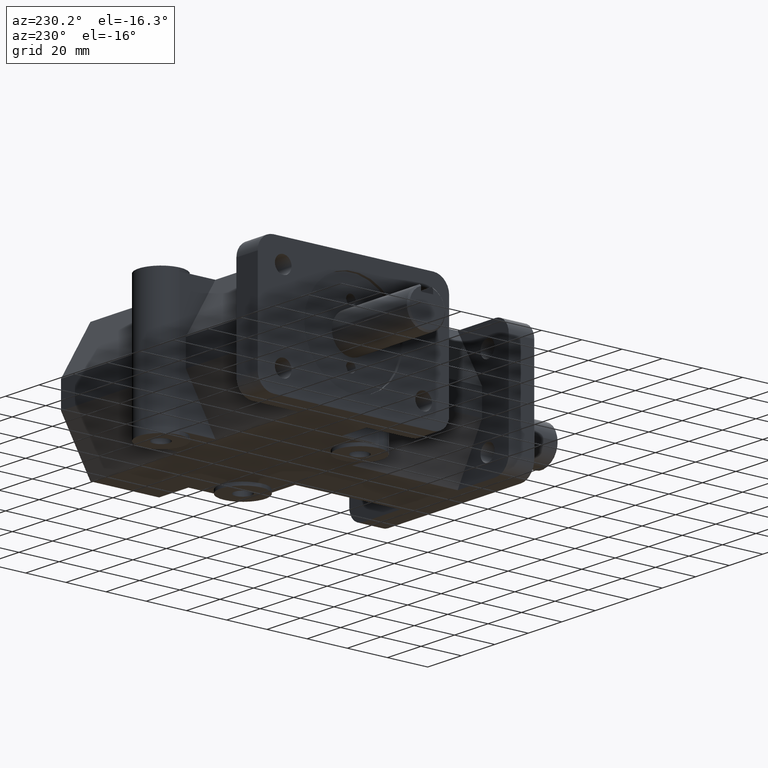
[diagram: clean part render]
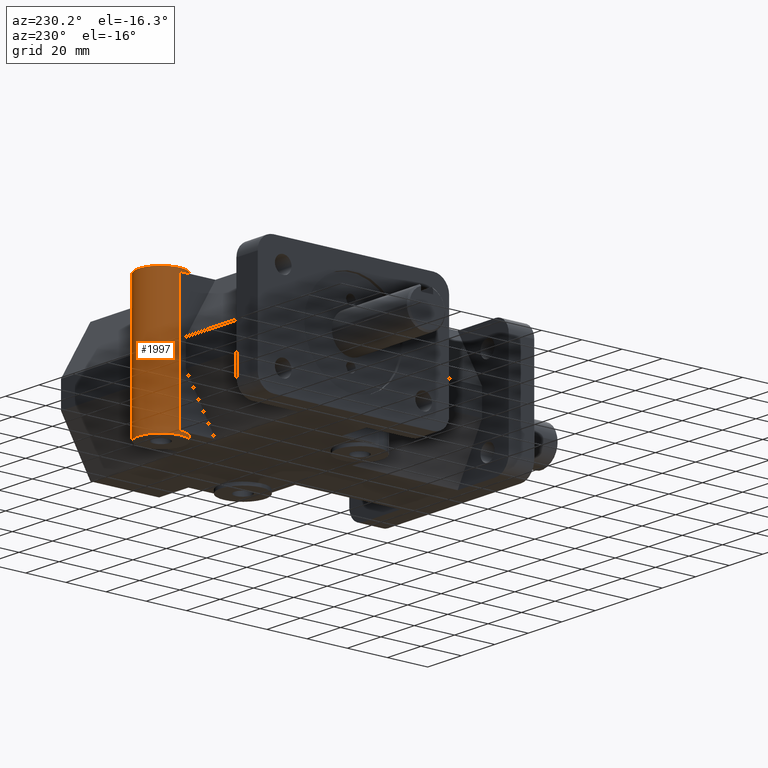
[diagram: same view with one face highlighted and labeled with its STEP entity id]
A machine part, auxiliary view. The second image highlights one B-rep face of the part: STEP entity #1997.
In plain terms, the highlighted cylindrical surface (bore or boss wall) has radius 11.1125 mm, axis along (0, 0, -1).
Its self-contained STEP definition (entity closure, byte-faithful):
#215=FACE_OUTER_BOUND('',#351,.T.);
#351=EDGE_LOOP('',(#1755,#1756,#1757,#1758,#1759,#1760,#1761,#1762,#1763,
#1764));
#557=LINE('',#3355,#748);
#558=LINE('',#3357,#749);
#559=LINE('',#3358,#750);
#560=LINE('',#3359,#751);
#748=VECTOR('',#2747,1.);
#749=VECTOR('',#2750,11.1125);
#750=VECTOR('',#2751,1.);
#751=VECTOR('',#2752,11.1125);
#819=CIRCLE('',#2125,11.1125);
#824=CIRCLE('',#2132,11.1125);
#849=CIRCLE('',#2194,11.1125);
#850=CIRCLE('',#2196,11.1125);
#947=VERTEX_POINT('',#3078);
#948=VERTEX_POINT('',#3080);
#967=VERTEX_POINT('',#3127);
#968=VERTEX_POINT('',#3129);
#1022=VERTEX_POINT('',#3309);
#1023=VERTEX_POINT('',#3312);
#1160=EDGE_CURVE('',#947,#948,#819,.T.);
#1187=EDGE_CURVE('',#967,#968,#824,.T.);
#1276=EDGE_CURVE('',#1022,#1022,#849,.T.);
#1277=EDGE_CURVE('',#1023,#1023,#850,.T.);
#1298=EDGE_CURVE('',#947,#968,#557,.T.);
#1299=EDGE_CURVE('',#1023,#967,#558,.T.);
#1300=EDGE_CURVE('',#948,#967,#559,.T.);
#1301=EDGE_CURVE('',#948,#1022,#560,.T.);
#1755=ORIENTED_EDGE('',*,*,#1277,.T.);
#1756=ORIENTED_EDGE('',*,*,#1299,.T.);
#1757=ORIENTED_EDGE('',*,*,#1300,.F.);
#1758=ORIENTED_EDGE('',*,*,#1301,.T.);
#1759=ORIENTED_EDGE('',*,*,#1276,.T.);
#1760=ORIENTED_EDGE('',*,*,#1301,.F.);
#1761=ORIENTED_EDGE('',*,*,#1160,.F.);
#1762=ORIENTED_EDGE('',*,*,#1298,.T.);
#1763=ORIENTED_EDGE('',*,*,#1187,.F.);
#1764=ORIENTED_EDGE('',*,*,#1299,.F.);
#1909=CYLINDRICAL_SURFACE('',#2206,11.1125);
#1997=ADVANCED_FACE('',(#215),#1909,.T.);
#2125=AXIS2_PLACEMENT_3D('',#3081,#2479,#2480);
#2132=AXIS2_PLACEMENT_3D('',#3130,#2515,#2516);
#2194=AXIS2_PLACEMENT_3D('',#3310,#2703,#2704);
#2196=AXIS2_PLACEMENT_3D('',#3313,#2707,#2708);
#2206=AXIS2_PLACEMENT_3D('',#3356,#2748,#2749);
#2479=DIRECTION('center_axis',(0.,0.,-1.));
#2480=DIRECTION('ref_axis',(1.,0.,0.));
#2515=DIRECTION('center_axis',(0.,0.,1.));
#2516=DIRECTION('ref_axis',(1.,0.,0.));
#2703=DIRECTION('center_axis',(0.,0.,-1.));
#2704=DIRECTION('ref_axis',(1.,0.,0.));
#2707=DIRECTION('center_axis',(0.,0.,1.));
#2708=DIRECTION('ref_axis',(1.,0.,0.));
#2747=DIRECTION('',(0.,0.,-1.));
#2748=DIRECTION('center_axis',(0.,0.,-1.));
#2749=DIRECTION('ref_axis',(1.,0.,0.));
#2750=DIRECTION('',(0.,0.,1.));
#2751=DIRECTION('',(0.,0.,-1.));
#2752=DIRECTION('',(0.,0.,1.));
#3078=CARTESIAN_POINT('',(11.1125,146.05,31.75));
#3080=CARTESIAN_POINT('',(-11.1125,146.05,31.75));
#3081=CARTESIAN_POINT('Origin',(0.,146.05,31.75));
#3127=CARTESIAN_POINT('',(-11.1125,146.05,-31.75));
#3129=CARTESIAN_POINT('',(11.1125,146.05,-31.75));
#3130=CARTESIAN_POINT('Origin',(0.,146.05,-31.75));
#3309=CARTESIAN_POINT('',(-11.1125,146.05,33.3375));
#3310=CARTESIAN_POINT('Origin',(0.,146.05,33.3375));
#3312=CARTESIAN_POINT('',(-11.1125,146.05,-33.3375));
#3313=CARTESIAN_POINT('Origin',(0.,146.05,-33.3375));
#3355=CARTESIAN_POINT('',(11.1125,146.05,0.));
#3356=CARTESIAN_POINT('Origin',(0.,146.05,0.));
#3357=CARTESIAN_POINT('',(-11.1125,146.05,0.));
#3358=CARTESIAN_POINT('',(-11.1125,146.05,0.));
#3359=CARTESIAN_POINT('',(-11.1125,146.05,0.));